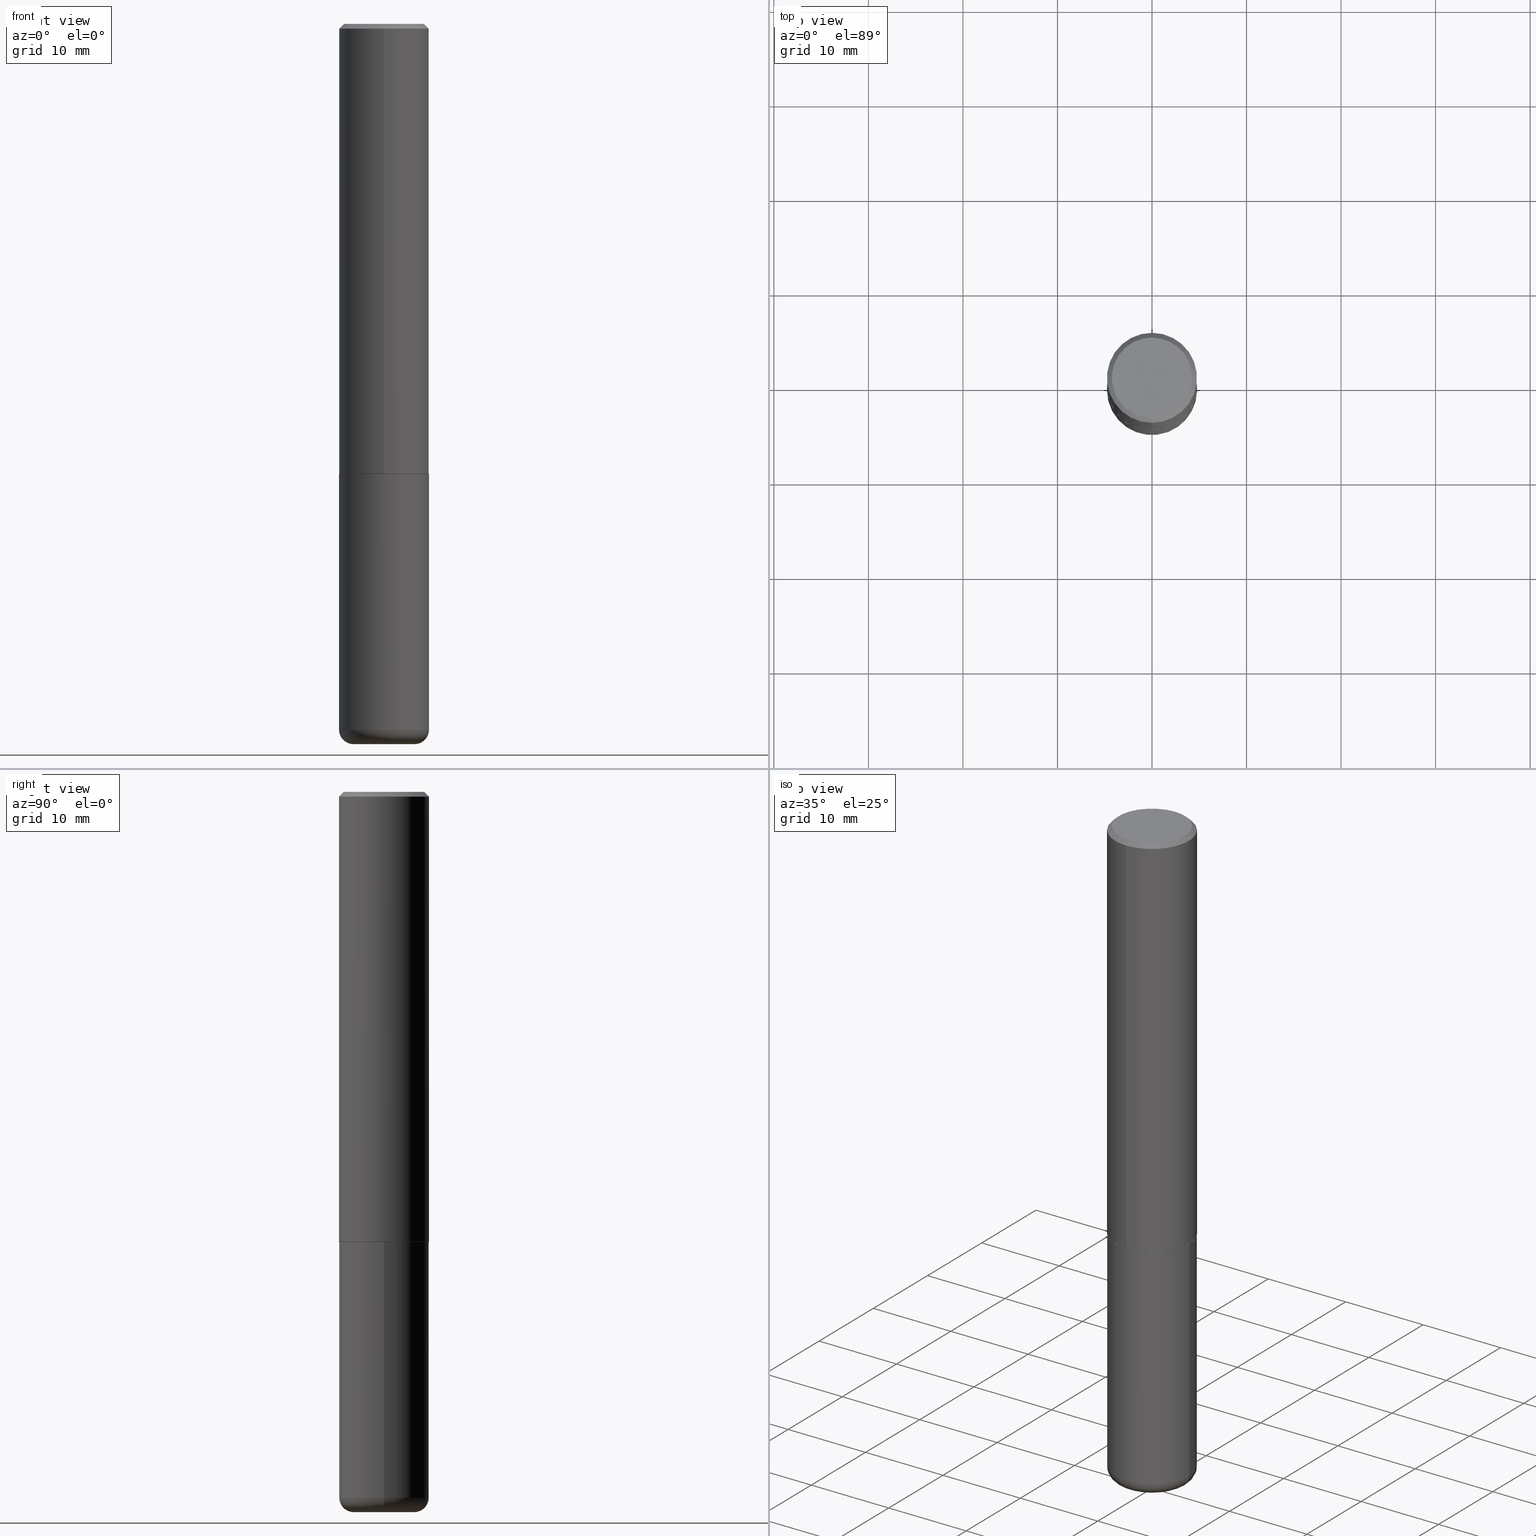
[diagram: canonical four-view strip — front | top / right | iso, engineering-drawing reading convention]
A machine part, canonical four-view strip (front | top / right | iso — engineering-drawing reading convention). The complete STEP part file that produces these views, byte-faithful:
ISO-10303-21;
HEADER;
FILE_DESCRIPTION (( 'STEP AP203' ),
    '1' );
FILE_NAME ('37489.STEP',
    '2024-03-02T02:34:42',
    ( '' ),
    ( '' ),
    'SwSTEP 2.0',
    'SolidWorks 2023',
    '' );
FILE_SCHEMA (( 'CONFIG_CONTROL_DESIGN' ));
ENDSEC;

DATA;
#1 = CONICAL_SURFACE ( 'NONE', #391, 0.1864999999999999714, 0.7853981633975165577 ) ;
#2 = CARTESIAN_POINT ( 'NONE',  ( -1.286343374582161379E-15, -0.1875000000000000555, -0.01999999999999938979 ) ) ;
#3 = APPROVAL ( #344, 'UNSPECIFIED' ) ;
#4 = AXIS2_PLACEMENT_3D ( 'NONE', #37, #364, #295 ) ;
#5 = DIRECTION ( 'NONE',  ( -4.851104656540957964E-15, -0.7071067811865491270, -0.7071067811865459074 ) ) ;
#6 = CARTESIAN_POINT ( 'NONE',  ( -0.1275000000000000022, -9.250594767541985380E-15, -3.000000000000000444 ) ) ;
#7 = DIRECTION ( 'NONE',  ( -6.982962677686265922E-15, -1.000000000000000000, 2.929595703661408850E-15 ) ) ;
#8 = ORIENTED_EDGE ( 'NONE', *, *, #370, .F. ) ;
#9 = LOCAL_TIME ( 21, 34, 42.00000000000000000, #349 ) ;
#10 = ADVANCED_FACE ( 'NONE', ( #57 ), #14, .T. ) ;
#11 = DIRECTION ( 'NONE',  ( -2.445422817087004124E-29, 3.491547197849208033E-15, 1.000000000000000000 ) ) ;
#12 = PERSON_AND_ORGANIZATION_ROLE ( 'design_owner' ) ;
#13 = ORIENTED_EDGE ( 'NONE', *, *, #82, .F. ) ;
#14 = CONICAL_SURFACE ( 'NONE', #26, 0.1874999999999999722, 0.7853981633974471688 ) ;
#15 = APPLICATION_PROTOCOL_DEFINITION ( 'international standard', 'config_control_design', 1994, #219 ) ;
#16 = ORIENTED_EDGE ( 'NONE', *, *, #60, .T. ) ;
#17 = CC_DESIGN_APPROVAL ( #3, ( #177 ) ) ;
#18 = VERTEX_POINT ( 'NONE', #261 ) ;
#19 = CARTESIAN_POINT ( 'NONE',  ( 4.582722359221045613E-29, -6.543159448769415354E-15, -1.874000000000000110 ) ) ;
#20 = ORIENTED_EDGE ( 'NONE', *, *, #97, .F. ) ;
#21 = VERTEX_POINT ( 'NONE', #33 ) ;
#22 = AXIS2_PLACEMENT_3D ( 'NONE', #71, #207, #335 ) ;
#23 = DIRECTION ( 'NONE',  ( -6.982962677686264344E-15, -1.000000000000000000, 3.491547197849207244E-15 ) ) ;
#24 = DIRECTION ( 'NONE',  ( -2.445422817087003844E-29, 3.491547197849208033E-15, 1.000000000000000000 ) ) ;
#25 = EDGE_CURVE ( 'NONE', #217, #244, #216, .T. ) ;
#26 = AXIS2_PLACEMENT_3D ( 'NONE', #381, #158, #29 ) ;
#27 = COORDINATED_UNIVERSAL_TIME_OFFSET ( 5, 0, .BEHIND. ) ;
#28 = CARTESIAN_POINT ( 'NONE',  ( 0.1875000000000000278, -7.855833012397073715E-15, -1.875000000000000000 ) ) ;
#29 = DIRECTION ( 'NONE',  ( 6.982962677686266711E-15, 1.000000000000000000, -3.483106191921935949E-15 ) ) ;
#30 = CONICAL_SURFACE ( 'NONE', #329, 0.1874999999999999722, 0.7853981633974471688 ) ;
#31 = AXIS2_PLACEMENT_3D ( 'NONE', #327, #11, #69 ) ;
#32 = CALENDAR_DATE ( 2024, 1, 3 ) ;
#33 = CARTESIAN_POINT ( 'NONE',  ( 1.332267629550211909E-15, 0.1874999999999936162, -1.874000000000000554 ) ) ;
#34 = AXIS2_PLACEMENT_3D ( 'NONE', #190, #155, #415 ) ;
#35 = EDGE_CURVE ( 'NONE', #396, #21, #384, .T. ) ;
#36 = DIRECTION ( 'NONE',  ( 4.937700262164541731E-15, 0.7071067811865442421, -0.7071067811865507924 ) ) ;
#37 = CARTESIAN_POINT ( 'NONE',  ( 7.336406418555409790E-29, -1.047444401652943635E-14, -3.000000000000000444 ) ) ;
#38 = FACE_OUTER_BOUND ( 'NONE', #314, .T. ) ;
#39 = EDGE_CURVE ( 'NONE', #283, #106, #315, .T. ) ;
#40 = DIRECTION ( 'NONE',  ( 6.982962677686265922E-15, 1.000000000000000000, -3.491547197849208033E-15 ) ) ;
#41 = LINE ( 'NONE', #170, #299 ) ;
#42 = AXIS2_PLACEMENT_3D ( 'NONE', #180, #333, #45 ) ;
#43 = ADVANCED_FACE ( 'NONE', ( #409 ), #257, .F. ) ;
#44 = FACE_OUTER_BOUND ( 'NONE', #418, .T. ) ;
#45 = DIRECTION ( 'NONE',  ( -1.000000000000000000, 6.982962677686265922E-15, -4.876176775795935793E-29 ) ) ;
#46 = ORIENTED_EDGE ( 'NONE', *, *, #380, .T. ) ;
#47 = ORIENTED_EDGE ( 'NONE', *, *, #135, .F. ) ;
#48 = AXIS2_PLACEMENT_3D ( 'NONE', #372, #172, #140 ) ;
#49 = CYLINDRICAL_SURFACE ( 'NONE', #386, 0.1875000000000000833 ) ;
#50 = VERTEX_POINT ( 'NONE', #188 ) ;
#51 = DIRECTION ( 'NONE',  ( -2.445422817087004124E-29, 3.491547197849208033E-15, 1.000000000000000000 ) ) ;
#52 = ORIENTED_EDGE ( 'NONE', *, *, #215, .T. ) ;
#53 = PERSON_AND_ORGANIZATION_ROLE ( 'creator' ) ;
#54 = ORIENTED_EDGE ( 'NONE', *, *, #385, .F. ) ;
#55 = AXIS2_PLACEMENT_3D ( 'NONE', #167, #200, #7 ) ;
#56 = LINE ( 'NONE', #223, #301 ) ;
#57 = FACE_OUTER_BOUND ( 'NONE', #366, .T. ) ;
#58 = APPROVAL_DATE_TIME ( #189, #3 ) ;
#59 = DIRECTION ( 'NONE',  ( -2.445468806185136597E-29, 3.491481338843145583E-15, 1.000000000000000000 ) ) ;
#60 = EDGE_CURVE ( 'NONE', #362, #146, #417, .T. ) ;
#61 = PERSON_AND_ORGANIZATION ( #163, #365 ) ;
#62 = DIRECTION ( 'NONE',  ( 1.000000000000000000, -6.982962677686266711E-15, 0.000000000000000000 ) ) ;
#63 = CARTESIAN_POINT ( 'NONE',  ( 1.774244268543582685E-45, -2.533246014083036310E-31, -7.255368094819153633E-17 ) ) ;
#64 = DIRECTION ( 'NONE',  ( -2.445468806185136597E-29, 3.491481338843145583E-15, 1.000000000000000000 ) ) ;
#65 = CARTESIAN_POINT ( 'NONE',  ( 7.189678290184301639E-29, -1.026495513619884961E-14, -2.940000000000000391 ) ) ;
#66 = ADVANCED_FACE ( 'NONE', ( #357 ), #203, .T. ) ;
#67 = CIRCLE ( 'NONE', #55, 0.1864999999999999714 ) ;
#68 = DIRECTION ( 'NONE',  ( 2.438088387897960049E-29, -3.491481338843145188E-15, -1.000000000000000000 ) ) ;
#69 = DIRECTION ( 'NONE',  ( -6.982962677686266711E-15, -1.000000000000000000, 3.491547197849207639E-15 ) ) ;
#70 =( LENGTH_UNIT ( ) NAMED_UNIT ( * ) SI_UNIT ( $, .METRE. ) );
#71 = CARTESIAN_POINT ( 'NONE',  ( 0.000000000000000000, 0.000000000000000000, 0.000000000000000000 ) ) ;
#72 = ORIENTED_EDGE ( 'NONE', *, *, #60, .F. ) ;
#73 = PERSON_AND_ORGANIZATION ( #163, #365 ) ;
#74 = EDGE_LOOP ( 'NONE', ( #368, #399, #311, #8 ) ) ;
#75 = AXIS2_PLACEMENT_3D ( 'NONE', #221, #202, #40 ) ;
#76 = LINE ( 'NONE', #395, #267 ) ;
#77 = CC_DESIGN_PERSON_AND_ORGANIZATION_ASSIGNMENT ( #346, #354, ( #177 ) ) ;
#78 = ORIENTED_EDGE ( 'NONE', *, *, #39, .T. ) ;
#79 = APPROVAL_PERSON_ORGANIZATION ( #184, #3, #321 ) ;
#80 = EDGE_LOOP ( 'NONE', ( #212, #246, #179, #316 ) ) ;
#81 = ORIENTED_EDGE ( 'NONE', *, *, #98, .T. ) ;
#82 = EDGE_CURVE ( 'NONE', #50, #106, #56, .T. ) ;
#83 = DIRECTION ( 'NONE',  ( -6.982962677686265922E-15, -1.000000000000000000, 2.929595703661408850E-15 ) ) ;
#84 = PERSON_AND_ORGANIZATION_ROLE ( 'classification_officer' ) ;
#85 = VECTOR ( 'NONE', #138, 39.37007874015748143 ) ;
#86 = PLANE ( 'NONE',  #75 ) ;
#87 = EDGE_CURVE ( 'NONE', #210, #283, #383, .T. ) ;
#88 = CARTESIAN_POINT ( 'NONE',  ( 4.585167782038132942E-29, -6.546650995967265555E-15, -1.875000000000000000 ) ) ;
#89 = VECTOR ( 'NONE', #379, 39.37007874015748143 ) ;
#90 = DATE_AND_TIME ( #378, #107 ) ;
#91 = CARTESIAN_POINT ( 'NONE',  ( 7.189678290184301639E-29, -1.026495513619884961E-14, -2.940000000000000391 ) ) ;
#92 = CC_DESIGN_DATE_AND_TIME_ASSIGNMENT ( #416, #414, ( #205 ) ) ;
#93 = MANIFOLD_SOLID_BREP ( 'Body-Move/Copy2[2]', #225 ) ;
#94 = CARTESIAN_POINT ( 'NONE',  ( 4.585254011597131119E-29, -6.546527510330898707E-15, -1.875000000000000000 ) ) ;
#95 = AXIS2_PLACEMENT_3D ( 'NONE', #19, #51, #211 ) ;
#96 = DIRECTION ( 'NONE',  ( 1.000000000000000000, -6.982962677686265922E-15, 4.876176775795935793E-29 ) ) ;
#97 = EDGE_CURVE ( 'NONE', #146, #362, #252, .T. ) ;
#98 = EDGE_CURVE ( 'NONE', #50, #210, #265, .T. ) ;
#99 = DIRECTION ( 'NONE',  ( -2.445468806185136597E-29, 3.491481338843145583E-15, 1.000000000000000000 ) ) ;
#100 = ORIENTED_EDGE ( 'NONE', *, *, #117, .F. ) ;
#101 = DIRECTION ( 'NONE',  ( 1.000000000000000000, -6.982962677686263555E-15, 4.883557194083111219E-29 ) ) ;
#102 = CARTESIAN_POINT ( 'NONE',  ( 4.585167782038132942E-29, -6.546650995967265555E-15, -1.875000000000000000 ) ) ;
#103 = EDGE_CURVE ( 'NONE', #106, #283, #369, .T. ) ;
#104 = DIRECTION ( 'NONE',  ( 1.000000000000000000, -6.982962677686260400E-15, 0.000000000000000000 ) ) ;
#105 = DIRECTION ( 'NONE',  ( -6.982962677686266711E-15, -1.000000000000000000, 3.491547197849207639E-15 ) ) ;
#106 = VERTEX_POINT ( 'NONE', #28 ) ;
#107 = LOCAL_TIME ( 21, 34, 42.00000000000000000, #191 ) ;
#108 = AXIS2_PLACEMENT_3D ( 'NONE', #394, #204, #160 ) ;
#109 = ORIENTED_EDGE ( 'NONE', *, *, #135, .T. ) ;
#110 = APPROVAL_ROLE ( '' ) ;
#111 = ORIENTED_EDGE ( 'NONE', *, *, #312, .F. ) ;
#112 = AXIS2_PLACEMENT_3D ( 'NONE', #149, #120, #62 ) ;
#113 = DIRECTION ( 'NONE',  ( 7.105427357601001859E-15, 1.000000000000000000, -3.491481338843145583E-15 ) ) ;
#114 = EDGE_LOOP ( 'NONE', ( #343, #371, #100, #111 ) ) ;
#115 =( NAMED_UNIT ( * ) SI_UNIT ( $, .STERADIAN. ) SOLID_ANGLE_UNIT ( ) );
#116 = ORIENTED_EDGE ( 'NONE', *, *, #338, .T. ) ;
#117 = EDGE_CURVE ( 'NONE', #18, #21, #352, .T. ) ;
#118 = DIRECTION ( 'NONE',  ( -2.445422817087004124E-29, 3.491547197849208033E-15, 1.000000000000000000 ) ) ;
#119 = PRODUCT_RELATED_PRODUCT_CATEGORY ( 'detail', '', ( #269 ) ) ;
#120 = DIRECTION ( 'NONE',  ( -2.445468806185136597E-29, 3.491481338843145583E-15, 1.000000000000000000 ) ) ;
#121 = ADVANCED_FACE ( 'NONE', ( #326 ), #238, .T. ) ;
#122 = COORDINATED_UNIVERSAL_TIME_OFFSET ( 5, 0, .BEHIND. ) ;
#123 = CARTESIAN_POINT ( 'NONE',  ( 7.189678290184301639E-29, -1.026495513619884961E-14, -2.940000000000000391 ) ) ;
#124 = VECTOR ( 'NONE', #355, 39.37007874015748143 ) ;
#125 = SHAPE_DEFINITION_REPRESENTATION ( #304, #151 ) ;
#126 = DIRECTION ( 'NONE',  ( 2.445422817087004124E-29, -3.491547197849208033E-15, -1.000000000000000000 ) ) ;
#127 = ADVANCED_FACE ( 'NONE', ( #253 ), #1, .T. ) ;
#128 = CARTESIAN_POINT ( 'NONE',  ( 0.000000000000000000, 0.000000000000000000, 0.000000000000000000 ) ) ;
#129 = ORIENTED_EDGE ( 'NONE', *, *, #338, .F. ) ;
#130 = AXIS2_PLACEMENT_3D ( 'NONE', #91, #227, #320 ) ;
#131 = CARTESIAN_POINT ( 'NONE',  ( 4.890845634174019353E-31, -6.983094395698430266E-17, -0.02000000000000004205 ) ) ;
#132 = ADVANCED_FACE ( 'NONE', ( #218 ), #86, .F. ) ;
#133 = DIRECTION ( 'NONE',  ( -1.000000000000000000, 6.982962677686265922E-15, -4.876176775795935793E-29 ) ) ;
#134 = FACE_OUTER_BOUND ( 'NONE', #74, .T. ) ;
#135 = EDGE_CURVE ( 'NONE', #362, #244, #161, .T. ) ;
#136 = AXIS2_PLACEMENT_3D ( 'NONE', #123, #153, #260 ) ;
#137 = ORIENTED_EDGE ( 'NONE', *, *, #186, .T. ) ;
#138 = DIRECTION ( 'NONE',  ( -2.445422817087003844E-29, 3.491547197849208033E-15, 1.000000000000000000 ) ) ;
#139 = EDGE_LOOP ( 'NONE', ( #337, #116, #46, #403 ) ) ;
#140 = DIRECTION ( 'NONE',  ( 1.000000000000000000, -6.982962677686270655E-15, 0.000000000000000000 ) ) ;
#141 = ORIENTED_EDGE ( 'NONE', *, *, #87, .T. ) ;
#142 = CARTESIAN_POINT ( 'NONE',  ( -1.309305502066175600E-15, -0.1875000000000000833, 6.546650995967267527E-16 ) ) ;
#143 = ORIENTED_EDGE ( 'NONE', *, *, #275, .F. ) ;
#144 = AXIS2_PLACEMENT_3D ( 'NONE', #88, #24, #347 ) ;
#145 = ADVANCED_FACE ( 'NONE', ( #237 ), #197, .T. ) ;
#146 = VERTEX_POINT ( 'NONE', #363 ) ;
#147 =( GEOMETRIC_REPRESENTATION_CONTEXT ( 3 ) GLOBAL_UNCERTAINTY_ASSIGNED_CONTEXT ( ( #281 ) ) GLOBAL_UNIT_ASSIGNED_CONTEXT ( ( #245, #367, #115 ) ) REPRESENTATION_CONTEXT ( 'NONE', 'WORKASPACE' ) );
#148 = CARTESIAN_POINT ( 'NONE',  ( 4.582722359221045613E-29, -6.543159448769415354E-15, -1.874000000000000110 ) ) ;
#149 = CARTESIAN_POINT ( 'NONE',  ( 4.585254011597131119E-29, -6.546527510330898707E-15, -1.875000000000000000 ) ) ;
#150 = AXIS2_PLACEMENT_3D ( 'NONE', #322, #230, #291 ) ;
#151 = ADVANCED_BREP_SHAPE_REPRESENTATION ( '37489', ( #236, #93, #22 ), #147 ) ;
#152 = APPROVAL_ROLE ( '' ) ;
#153 = DIRECTION ( 'NONE',  ( -2.445468806185136597E-29, 3.491481338843145583E-15, 1.000000000000000000 ) ) ;
#154 = APPROVAL ( #400, 'UNSPECIFIED' ) ;
#155 = DIRECTION ( 'NONE',  ( -2.445422817087004124E-29, 3.491547197849208033E-15, 1.000000000000000000 ) ) ;
#156 = APPLICATION_CONTEXT ( 'configuration controlled 3d designs of mechanical parts and assemblies' ) ;
#157 = PERSON_AND_ORGANIZATION ( #163, #365 ) ;
#158 = DIRECTION ( 'NONE',  ( 2.445422817087004124E-29, -3.491547197849208033E-15, -1.000000000000000000 ) ) ;
#159 = ADVANCED_FACE ( 'NONE', ( #38 ), #231, .T. ) ;
#160 = DIRECTION ( 'NONE',  ( 1.000000000000000000, -6.982962677686260400E-15, 0.000000000000000000 ) ) ;
#161 = LINE ( 'NONE', #298, #358 ) ;
#162 = CC_DESIGN_SECURITY_CLASSIFICATION ( #205, ( #177 ) ) ;
#163 = PERSON ( 'UNSPECIFIED', 'UNSPECIFIED', 'UNSPECIFIED', ('UNSPECIFIED'), ('UNSPECIFIED'), ('UNSPECIFIED') ) ;
#164 = DIRECTION ( 'NONE',  ( 6.982962677686266711E-15, 1.000000000000000000, -3.483106191921935949E-15 ) ) ;
#165 = EDGE_CURVE ( 'NONE', #210, #50, #296, .T. ) ;
#166 = AXIS2_PLACEMENT_3D ( 'NONE', #148, #193, #408 ) ;
#167 = CARTESIAN_POINT ( 'NONE',  ( 4.585167782038132942E-29, -6.546650995967265555E-15, -1.875000000000000000 ) ) ;
#168 = ORIENTED_EDGE ( 'NONE', *, *, #206, .T. ) ;
#169 = EDGE_CURVE ( 'NONE', #244, #217, #413, .T. ) ;
#170 = CARTESIAN_POINT ( 'NONE',  ( 1.309305502066175205E-15, 0.1874999999999999167, -0.02000000000000069431 ) ) ;
#171 = CC_DESIGN_APPROVAL ( #154, ( #175 ) ) ;
#172 = DIRECTION ( 'NONE',  ( -6.982962677686266711E-15, -1.000000000000000000, 3.491481338843145583E-15 ) ) ;
#173 = ORIENTED_EDGE ( 'NONE', *, *, #97, .T. ) ;
#174 = DIMENSIONAL_EXPONENTS ( 1.000000000000000000, 0.000000000000000000, 0.000000000000000000, 0.000000000000000000, 0.000000000000000000, 0.000000000000000000, 0.000000000000000000 ) ;
#175 = PRODUCT_DEFINITION ( 'UNKNOWN', '', #177, #410 ) ;
#176 = ORIENTED_EDGE ( 'NONE', *, *, #186, .F. ) ;
#177 = PRODUCT_DEFINITION_FORMATION_WITH_SPECIFIED_SOURCE ( 'ANY', '', #269, .NOT_KNOWN. ) ;
#178 = CARTESIAN_POINT ( 'NONE',  ( 0.000000000000000000, 0.000000000000000000, 0.000000000000000000 ) ) ;
#179 = ORIENTED_EDGE ( 'NONE', *, *, #82, .T. ) ;
#180 = CARTESIAN_POINT ( 'NONE',  ( 4.585254011597131119E-29, -6.546527510330898707E-15, -1.875000000000000000 ) ) ;
#181 = ORIENTED_EDGE ( 'NONE', *, *, #169, .F. ) ;
#182 = AXIS2_PLACEMENT_3D ( 'NONE', #94, #59, #286 ) ;
#183 = CC_DESIGN_PERSON_AND_ORGANIZATION_ASSIGNMENT ( #351, #222, ( #177 ) ) ;
#184 = PERSON_AND_ORGANIZATION ( #163, #365 ) ;
#185 = ORIENTED_EDGE ( 'NONE', *, *, #380, .F. ) ;
#186 = EDGE_CURVE ( 'NONE', #146, #217, #41, .T. ) ;
#187 = ORIENTED_EDGE ( 'NONE', *, *, #224, .F. ) ;
#188 = CARTESIAN_POINT ( 'NONE',  ( 0.1875000000000000278, -1.157426063826502304E-14, -2.940000000000000391 ) ) ;
#189 = DATE_AND_TIME ( #226, #192 ) ;
#190 = CARTESIAN_POINT ( 'NONE',  ( 4.890845634174019353E-31, -6.983094395698430266E-17, -0.02000000000000004205 ) ) ;
#191 = COORDINATED_UNIVERSAL_TIME_OFFSET ( 5, 0, .BEHIND. ) ;
#192 = LOCAL_TIME ( 21, 34, 42.00000000000000000, #27 ) ;
#193 = DIRECTION ( 'NONE',  ( -2.445422817087004124E-29, 3.491547197849208033E-15, 1.000000000000000000 ) ) ;
#194 = ADVANCED_FACE ( 'NONE', ( #134 ), #342, .T. ) ;
#195 = AXIS2_PLACEMENT_3D ( 'NONE', #65, #64, #101 ) ;
#196 = ADVANCED_FACE ( 'NONE', ( #331 ), #30, .T. ) ;
#197 = CYLINDRICAL_SURFACE ( 'NONE', #339, 0.1875000000000000555 ) ;
#198 = APPROVAL ( #251, 'UNSPECIFIED' ) ;
#199 = DIRECTION ( 'NONE',  ( -2.445422817087003844E-29, 3.491547197849208033E-15, 1.000000000000000000 ) ) ;
#200 = DIRECTION ( 'NONE',  ( -2.445422817087004124E-29, 3.491547197849208033E-15, 1.000000000000000000 ) ) ;
#201 = AXIS2_PLACEMENT_3D ( 'NONE', #359, #300, #104 ) ;
#202 = DIRECTION ( 'NONE',  ( 2.445422817087003844E-29, -3.491547197849208033E-15, -1.000000000000000000 ) ) ;
#203 = TOROIDAL_SURFACE ( 'NONE', #136, 0.1275000000000000022, 0.05999999999999997696 ) ;
#204 = DIRECTION ( 'NONE',  ( -2.445468806185136597E-29, 3.491481338843145583E-15, 1.000000000000000000 ) ) ;
#205 = SECURITY_CLASSIFICATION ( '', '', #407 ) ;
#206 = EDGE_CURVE ( 'NONE', #21, #217, #387, .T. ) ;
#207 = DIRECTION ( 'NONE',  ( 0.000000000000000000, 0.000000000000000000, 1.000000000000000000 ) ) ;
#208 = EDGE_LOOP ( 'NONE', ( #187, #390 ) ) ;
#209 = AXIS2_PLACEMENT_3D ( 'NONE', #353, #118, #254 ) ;
#210 = VERTEX_POINT ( 'NONE', #268 ) ;
#211 = DIRECTION ( 'NONE',  ( -6.982962677686265922E-15, -1.000000000000000000, 2.913971193241877611E-15 ) ) ;
#212 = ORIENTED_EDGE ( 'NONE', *, *, #87, .F. ) ;
#213 = PLANE ( 'NONE',  #42 ) ;
#214 = ORIENTED_EDGE ( 'NONE', *, *, #259, .T. ) ;
#215 = EDGE_CURVE ( 'NONE', #264, #406, #284, .T. ) ;
#216 = CIRCLE ( 'NONE', #34, 0.1874999999999999722 ) ;
#217 = VERTEX_POINT ( 'NONE', #239 ) ;
#218 = FACE_OUTER_BOUND ( 'NONE', #280, .T. ) ;
#219 = APPLICATION_CONTEXT ( 'configuration controlled 3d designs of mechanical parts and assemblies' ) ;
#220 = APPROVAL_DATE_TIME ( #382, #154 ) ;
#221 = CARTESIAN_POINT ( 'NONE',  ( 1.169646248512449792E-15, 0.1675000000000000655, -6.211109961138383353E-16 ) ) ;
#222 = PERSON_AND_ORGANIZATION_ROLE ( 'design_supplier' ) ;
#223 = CARTESIAN_POINT ( 'NONE',  ( 0.1875000000000000555, -1.309305502066175205E-15, 9.142831454617382414E-30 ) ) ;
#224 = EDGE_CURVE ( 'NONE', #406, #264, #324, .T. ) ;
#225 = CLOSED_SHELL ( 'NONE', ( #127, #159, #10, #196, #374, #121, #43, #132 ) ) ;
#226 = CALENDAR_DATE ( 2024, 1, 3 ) ;
#227 = DIRECTION ( 'NONE',  ( -2.445468806185136597E-29, 3.491481338843145583E-15, 1.000000000000000000 ) ) ;
#228 = CC_DESIGN_PERSON_AND_ORGANIZATION_ASSIGNMENT ( #276, #12, ( #269 ) ) ;
#229 = CIRCLE ( 'NONE', #95, 0.1875000000000001943 ) ;
#230 = DIRECTION ( 'NONE',  ( -2.445422817087004124E-29, 3.491547197849208033E-15, 1.000000000000000000 ) ) ;
#231 = CYLINDRICAL_SURFACE ( 'NONE', #31, 0.1875000000000000833 ) ;
#232 = CLOSED_SHELL ( 'NONE', ( #145, #194, #317, #249, #66, #270 ) ) ;
#233 = CARTESIAN_POINT ( 'NONE',  ( -1.302322539388442648E-15, -0.1865000000000065217, -1.874999999999999556 ) ) ;
#234 = FACE_OUTER_BOUND ( 'NONE', #208, .T. ) ;
#235 = LOCAL_TIME ( 21, 34, 42.00000000000000000, #375 ) ;
#236 = MANIFOLD_SOLID_BREP ( 'Body-Move/Copy2[1]', #232 ) ;
#237 = FACE_OUTER_BOUND ( 'NONE', #373, .T. ) ;
#238 = CONICAL_SURFACE ( 'NONE', #209, 0.1864999999999999714, 0.7853981633975165577 ) ;
#239 = CARTESIAN_POINT ( 'NONE',  ( 1.309305502066175205E-15, 0.1874999999999999167, -0.02000000000000069431 ) ) ;
#240 = CARTESIAN_POINT ( 'NONE',  ( 1.328714915871433493E-15, 0.1864999999999934210, -1.875000000000000666 ) ) ;
#241 = AXIS2_PLACEMENT_3D ( 'NONE', #302, #68, #133 ) ;
#242 = ORIENTED_EDGE ( 'NONE', *, *, #370, .T. ) ;
#243 = APPLICATION_PROTOCOL_DEFINITION ( 'international standard', 'config_control_design', 1994, #156 ) ;
#244 = VERTEX_POINT ( 'NONE', #2 ) ;
#245 =( CONVERSION_BASED_UNIT ( 'INCH', #282 ) LENGTH_UNIT ( ) NAMED_UNIT ( #174 ) );
#246 = ORIENTED_EDGE ( 'NONE', *, *, #165, .T. ) ;
#247 = DIRECTION ( 'NONE',  ( -1.000000000000000000, 7.105427357600993970E-15, 0.000000000000000000 ) ) ;
#248 = ORIENTED_EDGE ( 'NONE', *, *, #259, .F. ) ;
#249 = ADVANCED_FACE ( 'NONE', ( #330 ), #388, .T. ) ;
#250 = VERTEX_POINT ( 'NONE', #233 ) ;
#251 = APPROVAL_STATUS ( 'not_yet_approved' ) ;
#252 = CIRCLE ( 'NONE', #389, 0.1675000000000000655 ) ;
#253 = FACE_OUTER_BOUND ( 'NONE', #114, .T. ) ;
#254 = DIRECTION ( 'NONE',  ( -6.982962677686265922E-15, -1.000000000000000000, 2.929595703661408850E-15 ) ) ;
#255 = APPROVAL_PERSON_ORGANIZATION ( #73, #154, #110 ) ;
#256 = DATE_TIME_ROLE ( 'creation_date' ) ;
#257 = PLANE ( 'NONE',  #144 ) ;
#258 = CALENDAR_DATE ( 2024, 1, 3 ) ;
#259 = EDGE_CURVE ( 'NONE', #396, #250, #67, .T. ) ;
#260 = DIRECTION ( 'NONE',  ( 1.000000000000000000, -6.982962677686263555E-15, 4.883557194083111219E-29 ) ) ;
#261 = CARTESIAN_POINT ( 'NONE',  ( -1.309305502066130438E-15, -0.1875000000000067446, -1.873999999999999444 ) ) ;
#262 = CARTESIAN_POINT ( 'NONE',  ( 0.000000000000000000, 0.000000000000000000, 0.000000000000000000 ) ) ;
#263 = CARTESIAN_POINT ( 'NONE',  ( 1.332267629550188243E-15, 0.1875000000000000833, -6.546650995967267527E-16 ) ) ;
#264 = VERTEX_POINT ( 'NONE', #6 ) ;
#265 = CIRCLE ( 'NONE', #130, 0.1875000000000000555 ) ;
#266 = DIRECTION ( 'NONE',  ( -2.445422817087004124E-29, 3.491547197849208033E-15, 1.000000000000000000 ) ) ;
#267 = VECTOR ( 'NONE', #402, 39.37007874015748143 ) ;
#268 = CARTESIAN_POINT ( 'NONE',  ( -0.1875000000000000278, -8.932687506648661766E-15, -2.940000000000000391 ) ) ;
#269 = PRODUCT ( '37489', '37489', '', ( #273 ) ) ;
#270 = ADVANCED_FACE ( 'NONE', ( #234 ), #361, .T. ) ;
#271 = CARTESIAN_POINT ( 'NONE',  ( -1.217738394604446442E-15, -0.1675000000000000655, 5.122804746915509754E-16 ) ) ;
#272 = ORIENTED_EDGE ( 'NONE', *, *, #103, .T. ) ;
#273 = MECHANICAL_CONTEXT ( 'NONE', #219, 'mechanical' ) ;
#274 = EDGE_LOOP ( 'NONE', ( #54, #52, #242, #341 ) ) ;
#275 = EDGE_CURVE ( 'NONE', #250, #396, #405, .T. ) ;
#276 = PERSON_AND_ORGANIZATION ( #163, #365 ) ;
#277 = ORIENTED_EDGE ( 'NONE', *, *, #103, .F. ) ;
#278 = CC_DESIGN_PERSON_AND_ORGANIZATION_ASSIGNMENT ( #61, #84, ( #205 ) ) ;
#279 = CARTESIAN_POINT ( 'NONE',  ( -0.1275000000000000022, -9.359013148104722256E-15, -2.940000000000000391 ) ) ;
#280 = EDGE_LOOP ( 'NONE', ( #173, #16 ) ) ;
#281 = UNCERTAINTY_MEASURE_WITH_UNIT (LENGTH_MEASURE( 1.000000000000000082E-05 ), #245, 'distance_accuracy_value', 'NONE');
#282 = LENGTH_MEASURE_WITH_UNIT ( LENGTH_MEASURE( 0.02539999999999999897 ), #70 );
#283 = VERTEX_POINT ( 'NONE', #309 ) ;
#284 = CIRCLE ( 'NONE', #201, 0.1275000000000000022 ) ;
#285 = EDGE_LOOP ( 'NONE', ( #143, #248 ) ) ;
#286 = DIRECTION ( 'NONE',  ( 1.000000000000000000, -6.982962677686266711E-15, 0.000000000000000000 ) ) ;
#287 = CALENDAR_DATE ( 2024, 1, 3 ) ;
#288 = CARTESIAN_POINT ( 'NONE',  ( -0.1875000000000000555, 1.332267629550188243E-15, -9.223003294227950793E-30 ) ) ;
#289 = LOCAL_TIME ( 21, 34, 42.00000000000000000, #122 ) ;
#290 = DATE_AND_TIME ( #287, #9 ) ;
#291 = DIRECTION ( 'NONE',  ( -6.982962677686264344E-15, -1.000000000000000000, 3.491547197849207244E-15 ) ) ;
#292 = CC_DESIGN_PERSON_AND_ORGANIZATION_ASSIGNMENT ( #325, #53, ( #175 ) ) ;
#293 = APPROVAL_DATE_TIME ( #290, #198 ) ;
#294 = ORIENTED_EDGE ( 'NONE', *, *, #169, .T. ) ;
#295 = DIRECTION ( 'NONE',  ( 1.000000000000000000, -6.982962677686260400E-15, 0.000000000000000000 ) ) ;
#296 = CIRCLE ( 'NONE', #108, 0.1875000000000000555 ) ;
#297 = CIRCLE ( 'NONE', #348, 0.05999999999999997696 ) ;
#298 = CARTESIAN_POINT ( 'NONE',  ( -1.286343374582161379E-15, -0.1875000000000000555, -0.01999999999999938979 ) ) ;
#299 = VECTOR ( 'NONE', #36, 39.37007874015748143 ) ;
#300 = DIRECTION ( 'NONE',  ( -2.445468806185136597E-29, 3.491481338843145583E-15, 1.000000000000000000 ) ) ;
#301 = VECTOR ( 'NONE', #350, 39.37007874015748143 ) ;
#302 = CARTESIAN_POINT ( 'NONE',  ( 7.336406418555409790E-29, -1.047444401652943635E-14, -3.000000000000000444 ) ) ;
#303 = ORIENTED_EDGE ( 'NONE', *, *, #117, .T. ) ;
#304 = PRODUCT_DEFINITION_SHAPE ( 'NONE', 'NONE',  #175 ) ;
#305 = DIRECTION ( 'NONE',  ( 1.000000000000000000, -6.982962677686265922E-15, 4.876176775795935793E-29 ) ) ;
#306 = DIRECTION ( 'NONE',  ( -6.982962677686265922E-15, -1.000000000000000000, 2.929595703661408850E-15 ) ) ;
#307 = LINE ( 'NONE', #142, #85 ) ;
#308 = ORIENTED_EDGE ( 'NONE', *, *, #25, .T. ) ;
#309 = CARTESIAN_POINT ( 'NONE',  ( -0.1875000000000000278, -7.073473693714685523E-15, -1.875000000000000000 ) ) ;
#310 = AXIS2_PLACEMENT_3D ( 'NONE', #262, #99, #96 ) ;
#311 = ORIENTED_EDGE ( 'NONE', *, *, #98, .F. ) ;
#312 = EDGE_CURVE ( 'NONE', #250, #18, #76, .T. ) ;
#313 = DIRECTION ( 'NONE',  ( -2.445422817087004124E-29, 3.491547197849208033E-15, 1.000000000000000000 ) ) ;
#314 = EDGE_LOOP ( 'NONE', ( #303, #168, #181, #185 ) ) ;
#315 = CIRCLE ( 'NONE', #182, 0.1875000000000000278 ) ;
#316 = ORIENTED_EDGE ( 'NONE', *, *, #39, .F. ) ;
#317 = ADVANCED_FACE ( 'NONE', ( #44 ), #213, .F. ) ;
#318 = DIRECTION ( 'NONE',  ( -2.445422817087004124E-29, 3.491547197849208033E-15, 1.000000000000000000 ) ) ;
#319 = AXIS2_PLACEMENT_3D ( 'NONE', #131, #392, #328 ) ;
#320 = DIRECTION ( 'NONE',  ( 1.000000000000000000, -6.982962677686260400E-15, 0.000000000000000000 ) ) ;
#321 = APPROVAL_ROLE ( '' ) ;
#322 = CARTESIAN_POINT ( 'NONE',  ( 1.774244268543582685E-45, -2.533246014083036310E-31, -7.255368094819153633E-17 ) ) ;
#323 = CARTESIAN_POINT ( 'NONE',  ( 1.325162202192632397E-15, 0.1864999999999934210, -1.875000000000000666 ) ) ;
#324 = CIRCLE ( 'NONE', #4, 0.1275000000000000022 ) ;
#325 = PERSON_AND_ORGANIZATION ( #163, #365 ) ;
#326 = FACE_OUTER_BOUND ( 'NONE', #336, .T. ) ;
#327 = CARTESIAN_POINT ( 'NONE',  ( 0.000000000000000000, 0.000000000000000000, 0.000000000000000000 ) ) ;
#328 = DIRECTION ( 'NONE',  ( -6.982962677686266711E-15, -1.000000000000000000, 3.483106191921935949E-15 ) ) ;
#329 = AXIS2_PLACEMENT_3D ( 'NONE', #393, #126, #164 ) ;
#330 = FACE_OUTER_BOUND ( 'NONE', #80, .T. ) ;
#331 = FACE_OUTER_BOUND ( 'NONE', #376, .T. ) ;
#332 = DIRECTION ( 'NONE',  ( -2.445468806185136597E-29, 3.491481338843145583E-15, 1.000000000000000000 ) ) ;
#333 = DIRECTION ( 'NONE',  ( 2.438088387897960049E-29, -3.491481338843145188E-15, -1.000000000000000000 ) ) ;
#334 = AXIS2_PLACEMENT_3D ( 'NONE', #102, #266, #306 ) ;
#335 = DIRECTION ( 'NONE',  ( 1.000000000000000000, 0.000000000000000000, 0.000000000000000000 ) ) ;
#336 = EDGE_LOOP ( 'NONE', ( #345, #214, #401, #129 ) ) ;
#337 = ORIENTED_EDGE ( 'NONE', *, *, #206, .F. ) ;
#338 = EDGE_CURVE ( 'NONE', #21, #18, #229, .T. ) ;
#339 = AXIS2_PLACEMENT_3D ( 'NONE', #128, #332, #305 ) ;
#340 = FACE_OUTER_BOUND ( 'NONE', #139, .T. ) ;
#341 = ORIENTED_EDGE ( 'NONE', *, *, #165, .F. ) ;
#342 = TOROIDAL_SURFACE ( 'NONE', #195, 0.1275000000000000022, 0.05999999999999997696 ) ;
#343 = ORIENTED_EDGE ( 'NONE', *, *, #275, .T. ) ;
#344 = APPROVAL_STATUS ( 'not_yet_approved' ) ;
#345 = ORIENTED_EDGE ( 'NONE', *, *, #35, .F. ) ;
#346 = PERSON_AND_ORGANIZATION ( #163, #365 ) ;
#347 = DIRECTION ( 'NONE',  ( -6.982962677686265922E-15, -1.000000000000000000, 3.491547197849208033E-15 ) ) ;
#348 = AXIS2_PLACEMENT_3D ( 'NONE', #279, #113, #247 ) ;
#349 = COORDINATED_UNIVERSAL_TIME_OFFSET ( 5, 0, .BEHIND. ) ;
#350 = DIRECTION ( 'NONE',  ( -2.445468806185136877E-29, 3.491481338843145188E-15, 1.000000000000000000 ) ) ;
#351 = PERSON_AND_ORGANIZATION ( #163, #365 ) ;
#352 = CIRCLE ( 'NONE', #166, 0.1875000000000001943 ) ;
#353 = CARTESIAN_POINT ( 'NONE',  ( 4.585167782038132942E-29, -6.546650995967265555E-15, -1.875000000000000000 ) ) ;
#354 = PERSON_AND_ORGANIZATION_ROLE ( 'creator' ) ;
#355 = DIRECTION ( 'NONE',  ( -2.445468806185136877E-29, 3.491481338843145188E-15, 1.000000000000000000 ) ) ;
#356 = VECTOR ( 'NONE', #199, 39.37007874015748143 ) ;
#357 = FACE_OUTER_BOUND ( 'NONE', #274, .T. ) ;
#358 = VECTOR ( 'NONE', #5, 39.37007874015748143 ) ;
#359 = CARTESIAN_POINT ( 'NONE',  ( 7.336406418555409790E-29, -1.047444401652943635E-14, -3.000000000000000444 ) ) ;
#360 = CIRCLE ( 'NONE', #48, 0.05999999999999997696 ) ;
#361 = PLANE ( 'NONE',  #241 ) ;
#362 = VERTEX_POINT ( 'NONE', #271 ) ;
#363 = CARTESIAN_POINT ( 'NONE',  ( 1.239475875289312499E-15, 0.1675000000000000655, -6.573878365879339248E-16 ) ) ;
#364 = DIRECTION ( 'NONE',  ( -2.445468806185136597E-29, 3.491481338843145583E-15, 1.000000000000000000 ) ) ;
#365 = ORGANIZATION ( 'UNSPECIFIED', 'UNSPECIFIED', '' ) ;
#366 = EDGE_LOOP ( 'NONE', ( #72, #109, #294, #176 ) ) ;
#367 =( NAMED_UNIT ( * ) PLANE_ANGLE_UNIT ( ) SI_UNIT ( $, .RADIAN. ) );
#368 = ORIENTED_EDGE ( 'NONE', *, *, #224, .T. ) ;
#369 = CIRCLE ( 'NONE', #112, 0.1875000000000000278 ) ;
#370 = EDGE_CURVE ( 'NONE', #406, #50, #360, .T. ) ;
#371 = ORIENTED_EDGE ( 'NONE', *, *, #35, .T. ) ;
#372 = CARTESIAN_POINT ( 'NONE',  ( 0.1275000000000000022, -1.115528287760384799E-14, -2.940000000000000391 ) ) ;
#373 = EDGE_LOOP ( 'NONE', ( #81, #141, #277, #13 ) ) ;
#374 = ADVANCED_FACE ( 'NONE', ( #340 ), #49, .T. ) ;
#375 = COORDINATED_UNIVERSAL_TIME_OFFSET ( 5, 0, .BEHIND. ) ;
#376 = EDGE_LOOP ( 'NONE', ( #47, #20, #137, #308 ) ) ;
#377 = DIRECTION ( 'NONE',  ( -2.445422817087004124E-29, 3.491547197849208033E-15, 1.000000000000000000 ) ) ;
#378 = CALENDAR_DATE ( 2024, 1, 3 ) ;
#379 = DIRECTION ( 'NONE',  ( 5.024295867788404755E-15, 0.7071067811865981989, 0.7071067811864968355 ) ) ;
#380 = EDGE_CURVE ( 'NONE', #18, #244, #307, .T. ) ;
#381 = CARTESIAN_POINT ( 'NONE',  ( 4.890845634174019353E-31, -6.983094395698430266E-17, -0.02000000000000004205 ) ) ;
#382 = DATE_AND_TIME ( #258, #289 ) ;
#383 = LINE ( 'NONE', #288, #124 ) ;
#384 = LINE ( 'NONE', #323, #89 ) ;
#385 = EDGE_CURVE ( 'NONE', #264, #210, #297, .T. ) ;
#386 = AXIS2_PLACEMENT_3D ( 'NONE', #178, #313, #105 ) ;
#387 = LINE ( 'NONE', #263, #356 ) ;
#388 = CYLINDRICAL_SURFACE ( 'NONE', #310, 0.1875000000000000555 ) ;
#389 = AXIS2_PLACEMENT_3D ( 'NONE', #63, #318, #23 ) ;
#390 = ORIENTED_EDGE ( 'NONE', *, *, #215, .F. ) ;
#391 = AXIS2_PLACEMENT_3D ( 'NONE', #411, #377, #83 ) ;
#392 = DIRECTION ( 'NONE',  ( -2.445422817087004124E-29, 3.491547197849208033E-15, 1.000000000000000000 ) ) ;
#393 = CARTESIAN_POINT ( 'NONE',  ( 4.890845634174019353E-31, -6.983094395698430266E-17, -0.02000000000000004205 ) ) ;
#394 = CARTESIAN_POINT ( 'NONE',  ( 7.189678290184301639E-29, -1.026495513619884961E-14, -2.940000000000000391 ) ) ;
#395 = CARTESIAN_POINT ( 'NONE',  ( -1.302322539388442648E-15, -0.1865000000000065217, -1.874999999999999556 ) ) ;
#396 = VERTEX_POINT ( 'NONE', #240 ) ;
#397 = CC_DESIGN_APPROVAL ( #198, ( #205 ) ) ;
#398 = CARTESIAN_POINT ( 'NONE',  ( 0.1275000000000000022, -1.136477175793443473E-14, -3.000000000000000444 ) ) ;
#399 = ORIENTED_EDGE ( 'NONE', *, *, #385, .T. ) ;
#400 = APPROVAL_STATUS ( 'not_yet_approved' ) ;
#401 = ORIENTED_EDGE ( 'NONE', *, *, #312, .T. ) ;
#402 = DIRECTION ( 'NONE',  ( -4.937700262164884886E-15, -0.7071067811865933139, 0.7071067811865017205 ) ) ;
#403 = ORIENTED_EDGE ( 'NONE', *, *, #25, .F. ) ;
#404 = CC_DESIGN_DATE_AND_TIME_ASSIGNMENT ( #90, #256, ( #175 ) ) ;
#405 = CIRCLE ( 'NONE', #334, 0.1864999999999999714 ) ;
#406 = VERTEX_POINT ( 'NONE', #398 ) ;
#407 = SECURITY_CLASSIFICATION_LEVEL ( 'unclassified' ) ;
#408 = DIRECTION ( 'NONE',  ( -6.982962677686265922E-15, -1.000000000000000000, 2.913971193241877611E-15 ) ) ;
#409 = FACE_OUTER_BOUND ( 'NONE', #285, .T. ) ;
#410 = DESIGN_CONTEXT ( 'detailed design', #156, 'design' ) ;
#411 = CARTESIAN_POINT ( 'NONE',  ( 4.585167782038132942E-29, -6.546650995967265555E-15, -1.875000000000000000 ) ) ;
#412 = APPROVAL_PERSON_ORGANIZATION ( #157, #198, #152 ) ;
#413 = CIRCLE ( 'NONE', #319, 0.1874999999999999722 ) ;
#414 = DATE_TIME_ROLE ( 'classification_date' ) ;
#415 = DIRECTION ( 'NONE',  ( -6.982962677686266711E-15, -1.000000000000000000, 3.483106191921935949E-15 ) ) ;
#416 = DATE_AND_TIME ( #32, #235 ) ;
#417 = CIRCLE ( 'NONE', #150, 0.1675000000000000655 ) ;
#418 = EDGE_LOOP ( 'NONE', ( #272, #78 ) ) ;
ENDSEC;
END-ISO-10303-21;
